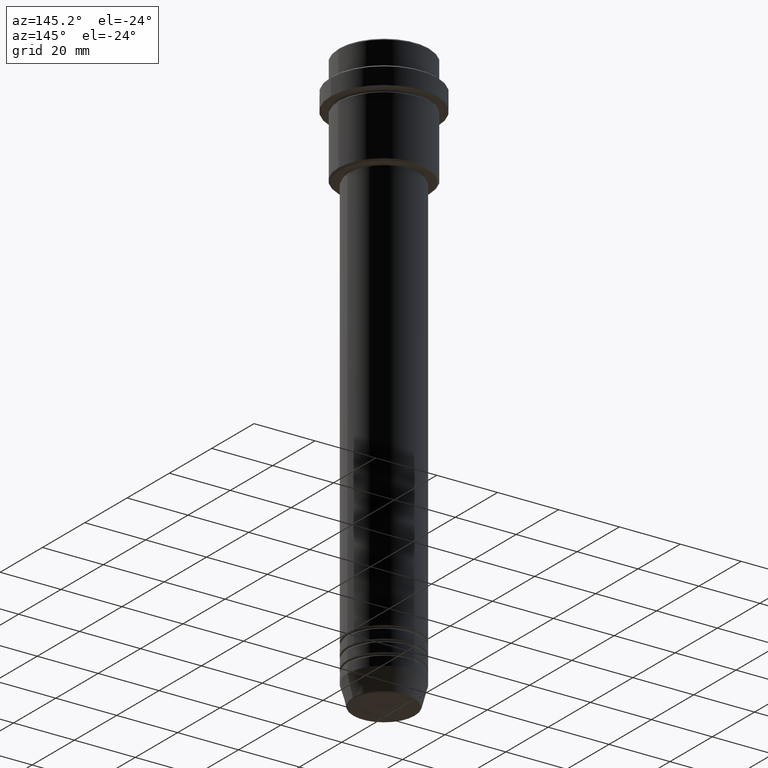
[diagram: clean part render]
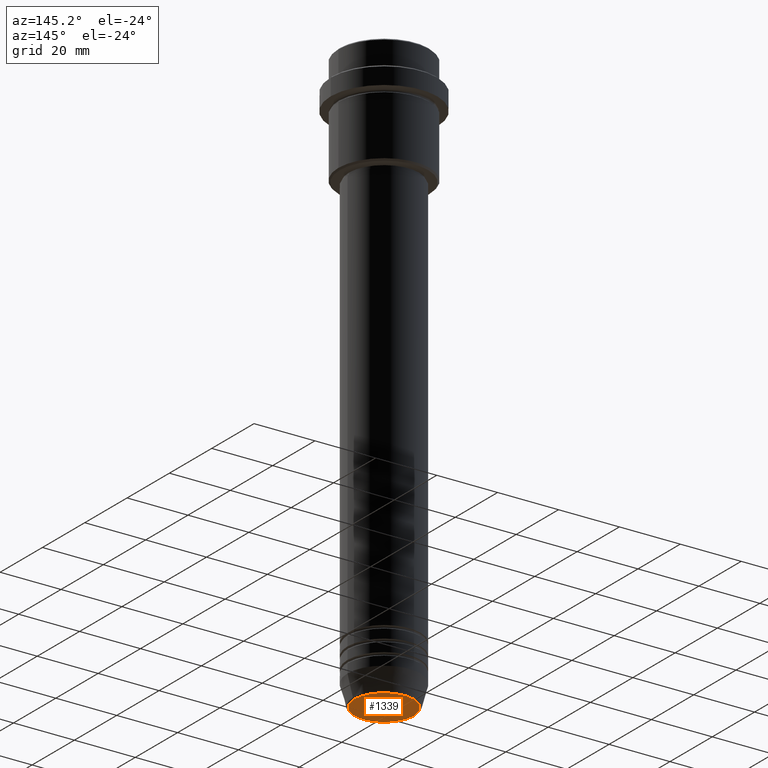
[diagram: same view with one face highlighted and labeled with its STEP entity id]
A machine part, auxiliary view. The second image highlights one B-rep face of the part: STEP entity #1339.
In plain terms, the highlighted planar face has unit normal (0, -0, 1).
Its self-contained STEP definition (entity closure, byte-faithful):
#10 = AXIS2_PLACEMENT_3D ( 'NONE', #1163, #480, #372 ) ;
#90 = VERTEX_POINT ( 'NONE', #453 ) ;
#140 = FACE_OUTER_BOUND ( 'NONE', #871, .T. ) ;
#165 = DIRECTION ( 'NONE',  ( 1.000000000000000000, 0.000000000000000000, 0.000000000000000000 ) ) ;
#248 = DIRECTION ( 'NONE',  ( 0.000000000000000000, -0.000000000000000000, 1.000000000000000000 ) ) ;
#351 = CARTESIAN_POINT ( 'NONE',  ( 0.000000000000000000, 0.000000000000000000, -191.0000000000000000 ) ) ;
#372 = DIRECTION ( 'NONE',  ( 1.000000000000000000, 0.000000000000000000, 0.000000000000000000 ) ) ;
#435 = ORIENTED_EDGE ( 'NONE', *, *, #1285, .T. ) ;
#453 = CARTESIAN_POINT ( 'NONE',  ( -9.740692158992658278, 1.222463696683474999E-15, -191.0000000000000000 ) ) ;
#457 = DIRECTION ( 'NONE',  ( 1.000000000000000000, 0.000000000000000000, 0.000000000000000000 ) ) ;
#480 = DIRECTION ( 'NONE',  ( 0.000000000000000000, 0.000000000000000000, -1.000000000000000000 ) ) ;
#592 = CARTESIAN_POINT ( 'NONE',  ( 9.740692158992658278, 0.000000000000000000, -191.0000000000000000 ) ) ;
#711 = CARTESIAN_POINT ( 'NONE',  ( 0.000000000000000000, 0.000000000000000000, -191.0000000000000000 ) ) ;
#844 = AXIS2_PLACEMENT_3D ( 'NONE', #351, #248, #457 ) ;
#871 = EDGE_LOOP ( 'NONE', ( #435, #1292 ) ) ;
#904 = AXIS2_PLACEMENT_3D ( 'NONE', #711, #1017, #165 ) ;
#1017 = DIRECTION ( 'NONE',  ( 0.000000000000000000, 0.000000000000000000, -1.000000000000000000 ) ) ;
#1046 = CIRCLE ( 'NONE', #10, 9.740692158992658278 ) ;
#1163 = CARTESIAN_POINT ( 'NONE',  ( 0.000000000000000000, 0.000000000000000000, -191.0000000000000000 ) ) ;
#1187 = CIRCLE ( 'NONE', #904, 9.740692158992658278 ) ;
#1265 = VERTEX_POINT ( 'NONE', #592 ) ;
#1285 = EDGE_CURVE ( 'NONE', #1265, #90, #1046, .T. ) ;
#1292 = ORIENTED_EDGE ( 'NONE', *, *, #1327, .T. ) ;
#1327 = EDGE_CURVE ( 'NONE', #90, #1265, #1187, .T. ) ;
#1339 = ADVANCED_FACE ( 'NONE', ( #140 ), #1417, .F. ) ;
#1417 = PLANE ( 'NONE',  #844 ) ;